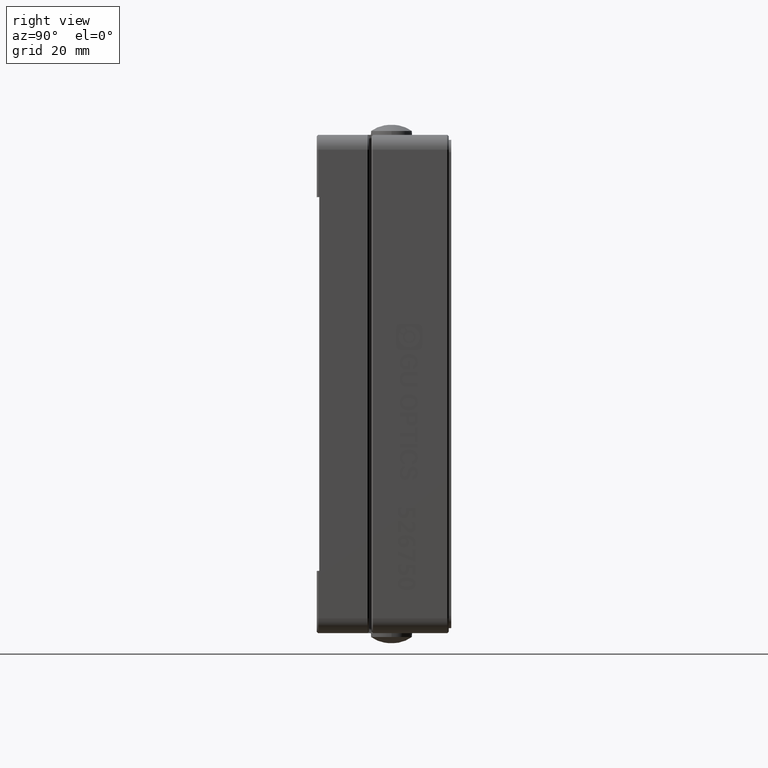
[diagram: clean part render]
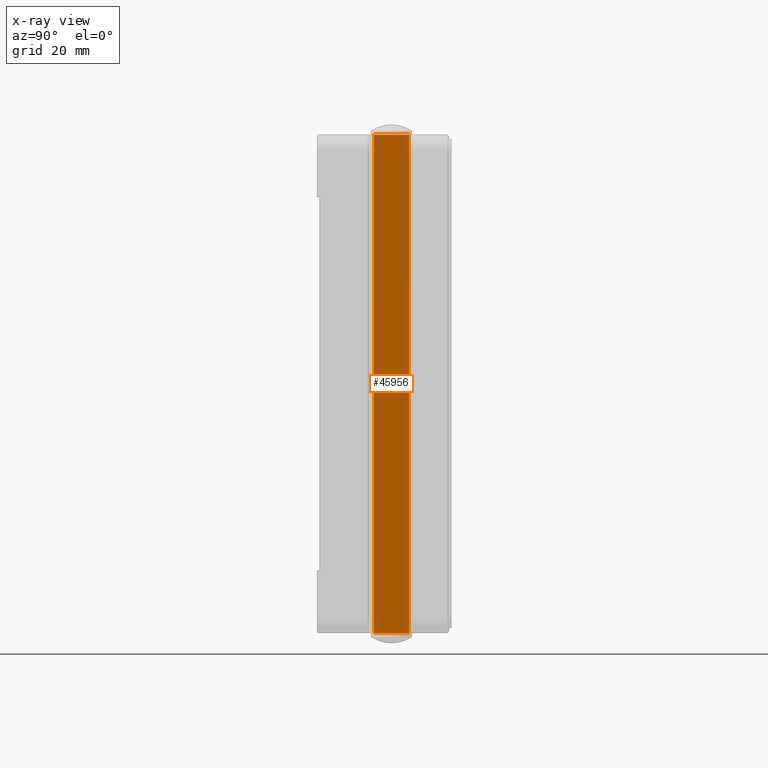
[diagram: x-ray — body ghosted, one internal face saturated and labeled with its STEP entity id]
A machine part, right view, then the same camera in x-ray: the body is ghosted and one INTERNAL B-rep face — a face not visible from any outside direction — is saturated and labeled: STEP entity #45956.
In plain terms, the highlighted planar face has unit normal (-1, 0, 0).
Its self-contained STEP definition (entity closure, byte-faithful):
#799 = ORIENTED_EDGE ( 'NONE', *, *, #54520, .F. ) ;
#1121 = CARTESIAN_POINT ( 'NONE',  ( 45.00000000000000000, 4.500000000000000000, -50.00000000000000000 ) ) ;
#1400 = VERTEX_POINT ( 'NONE', #44032 ) ;
#1695 = VERTEX_POINT ( 'NONE', #18694 ) ;
#2627 = VECTOR ( 'NONE', #29902, 1000.000000000000000 ) ;
#3967 = LINE ( 'NONE', #8658, #2627 ) ;
#4148 = LINE ( 'NONE', #1121, #46793 ) ;
#5400 = DIRECTION ( 'NONE',  ( 0.0000000000000000000, -1.000000000000000000, 0.0000000000000000000 ) ) ;
#7540 = DIRECTION ( 'NONE',  ( -0.0000000000000000000, -0.0000000000000000000, -1.000000000000000000 ) ) ;
#8018 = VECTOR ( 'NONE', #28689, 1000.000000000000000 ) ;
#8658 = CARTESIAN_POINT ( 'NONE',  ( 45.00000000000000000, 6.500000000000000900, 50.00000000000000000 ) ) ;
#9156 = EDGE_CURVE ( 'NONE', #20019, #1400, #32122, .T. ) ;
#9470 = VECTOR ( 'NONE', #7540, 1000.000000000000000 ) ;
#11111 = LINE ( 'NONE', #41833, #43774 ) ;
#11920 = DIRECTION ( 'NONE',  ( -0.0000000000000000000, -1.000000000000000000, -0.0000000000000000000 ) ) ;
#12890 = CARTESIAN_POINT ( 'NONE',  ( 45.00000000000000000, 0.9800000000014640300, -50.00000000000000000 ) ) ;
#15812 = CARTESIAN_POINT ( 'NONE',  ( 45.00000000000000000, 0.9799999999999997600, 0.0000000000000000000 ) ) ;
#16305 = DIRECTION ( 'NONE',  ( 0.0000000000000000000, -1.000000000000000000, 0.0000000000000000000 ) ) ;
#16354 = CARTESIAN_POINT ( 'NONE',  ( 45.00000000000000000, 8.160800000000001800, -52.00000000000000700 ) ) ;
#16724 = LINE ( 'NONE', #37436, #48031 ) ;
#18694 = CARTESIAN_POINT ( 'NONE',  ( 44.99999999999987900, 4.500000000000000900, 49.99999999999998600 ) ) ;
#19193 = EDGE_CURVE ( 'NONE', #29648, #31251, #4148, .T. ) ;
#20019 = VERTEX_POINT ( 'NONE', #44792 ) ;
#20219 = CARTESIAN_POINT ( 'NONE',  ( 45.00000000000000000, 8.019999999999999600, 0.0000000000000000000 ) ) ;
#23121 = EDGE_CURVE ( 'NONE', #1400, #29648, #11111, .T. ) ;
#24953 = DIRECTION ( 'NONE',  ( 0.0000000000000000000, -1.000000000000000000, 0.0000000000000000000 ) ) ;
#28689 = DIRECTION ( 'NONE',  ( 0.0000000000000000000, 0.0000000000000000000, 1.000000000000000000 ) ) ;
#29648 = VERTEX_POINT ( 'NONE', #39449 ) ;
#29902 = DIRECTION ( 'NONE',  ( -0.0000000000000000000, -1.000000000000000000, -0.0000000000000000000 ) ) ;
#31251 = VERTEX_POINT ( 'NONE', #12890 ) ;
#31847 = CARTESIAN_POINT ( 'NONE',  ( 44.99999999999950300, 0.9800000000004880400, 49.99999999999999300 ) ) ;
#32122 = LINE ( 'NONE', #20219, #9470 ) ;
#33363 = EDGE_LOOP ( 'NONE', ( #33393, #54449, #35831, #799, #52901, #54509 ) ) ;
#33393 = ORIENTED_EDGE ( 'NONE', *, *, #9156, .F. ) ;
#33553 = EDGE_CURVE ( 'NONE', #20019, #1695, #3967, .T. ) ;
#35831 = ORIENTED_EDGE ( 'NONE', *, *, #54066, .T. ) ;
#37436 = CARTESIAN_POINT ( 'NONE',  ( 45.00000000000000000, 2.499999999999949800, 50.00000000000000000 ) ) ;
#39449 = CARTESIAN_POINT ( 'NONE',  ( 44.99999999999980100, 4.500000000000000900, -49.99999999999997200 ) ) ;
#41235 = FACE_OUTER_BOUND ( 'NONE', #33363, .T. ) ;
#41833 = CARTESIAN_POINT ( 'NONE',  ( 45.00000000000000000, 4.500000000000000000, -50.00000000000000000 ) ) ;
#41998 = LINE ( 'NONE', #15812, #8018 ) ;
#43774 = VECTOR ( 'NONE', #16305, 1000.000000000000000 ) ;
#44032 = CARTESIAN_POINT ( 'NONE',  ( 44.99999999999951000, 8.019999999999512900, -50.00000000000000700 ) ) ;
#44792 = CARTESIAN_POINT ( 'NONE',  ( 44.99999999999951000, 8.019999999999512900, 49.99999999999999300 ) ) ;
#45828 = VERTEX_POINT ( 'NONE', #31847 ) ;
#45956 = ADVANCED_FACE ( 'NONE', ( #41235 ), #46140, .F. ) ;
#46140 = PLANE ( 'NONE',  #46530 ) ;
#46530 = AXIS2_PLACEMENT_3D ( 'NONE', #16354, #50440, #24953 ) ;
#46793 = VECTOR ( 'NONE', #5400, 1000.000000000000000 ) ;
#48031 = VECTOR ( 'NONE', #11920, 1000.000000000000000 ) ;
#50440 = DIRECTION ( 'NONE',  ( -1.000000000000000000, 0.0000000000000000000, 0.0000000000000000000 ) ) ;
#52901 = ORIENTED_EDGE ( 'NONE', *, *, #19193, .F. ) ;
#54066 = EDGE_CURVE ( 'NONE', #1695, #45828, #16724, .T. ) ;
#54449 = ORIENTED_EDGE ( 'NONE', *, *, #33553, .T. ) ;
#54509 = ORIENTED_EDGE ( 'NONE', *, *, #23121, .F. ) ;
#54520 = EDGE_CURVE ( 'NONE', #31251, #45828, #41998, .T. ) ;